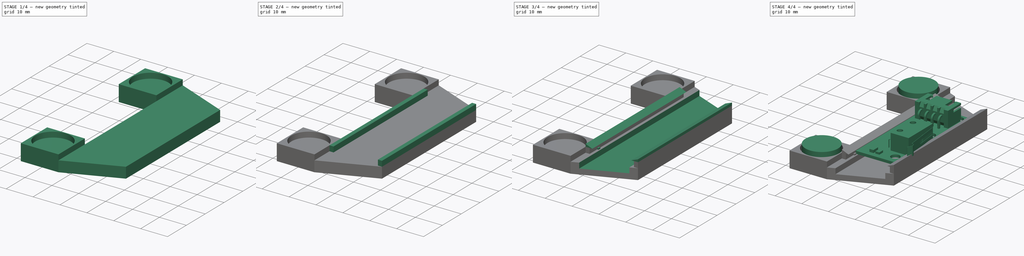
[diagram: build sequence overview — one tinted view per stage of 4, left to right]
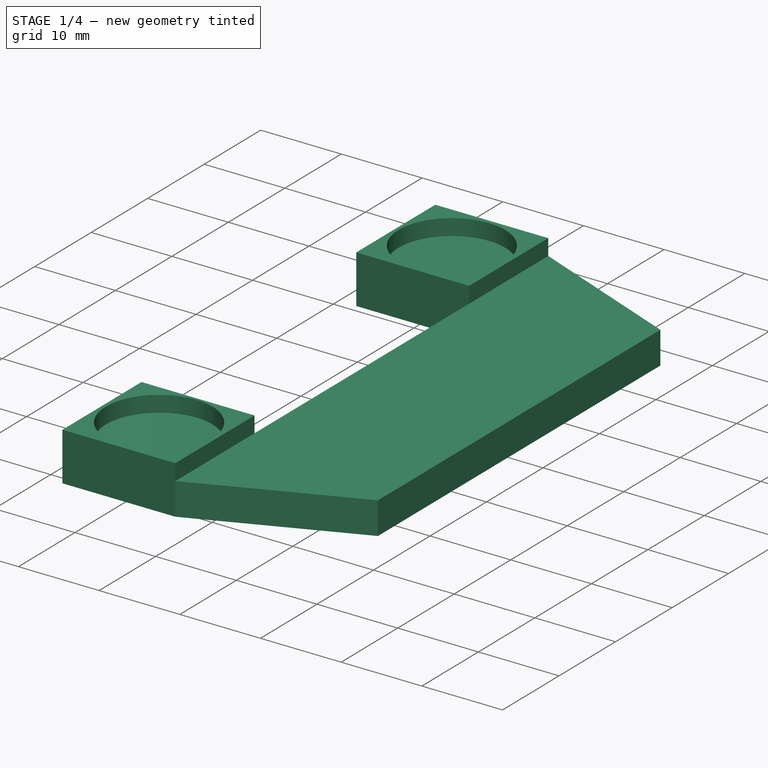
[diagram: stage 1 of 4 — iso view after this stage's code; geometry added in this stage tinted green]
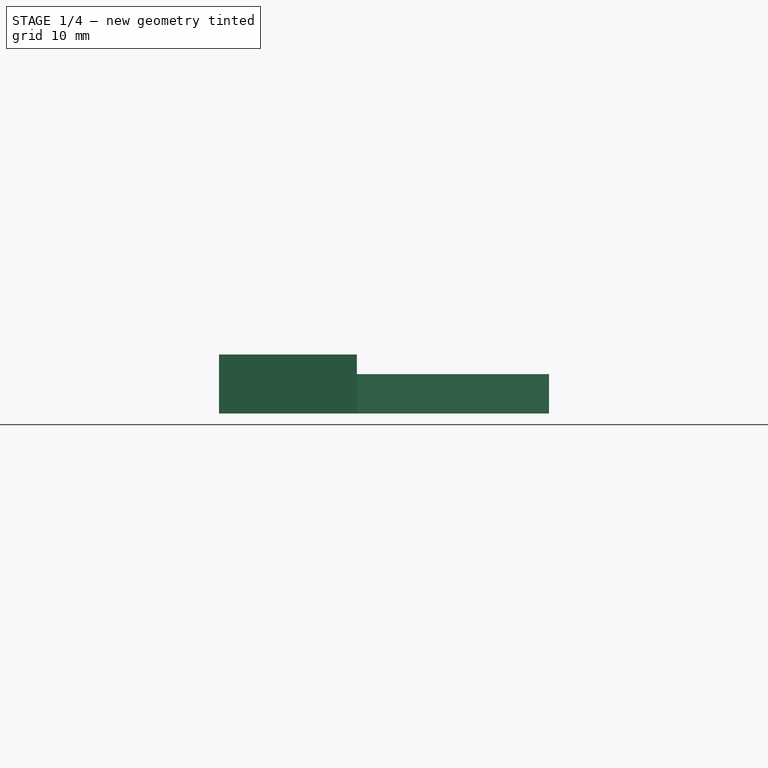
[diagram: stage 1 of 4 — front view after this stage's code; geometry added in this stage tinted green]
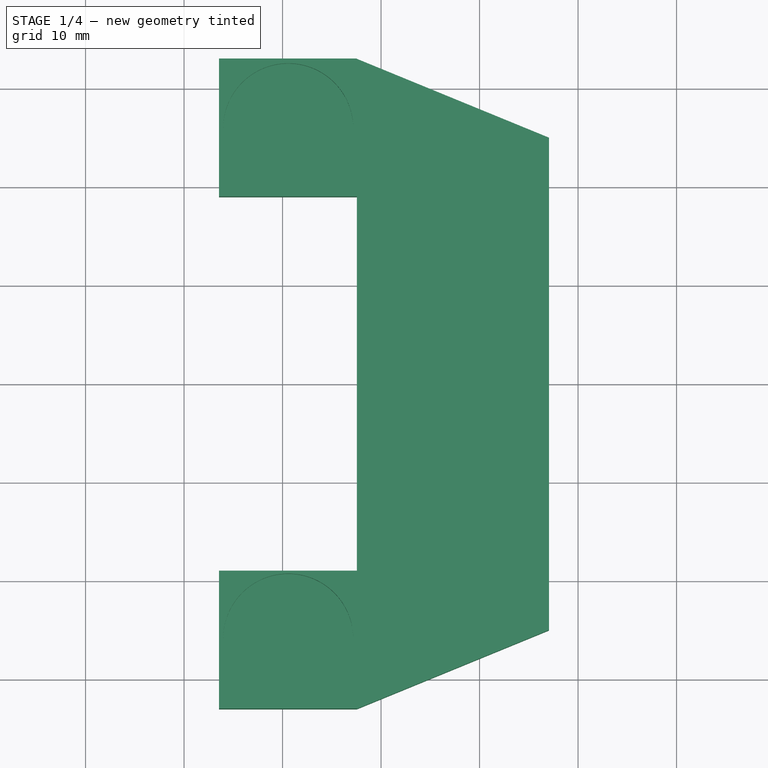
[diagram: stage 1 of 4 — top view after this stage's code; geometry added in this stage tinted green]
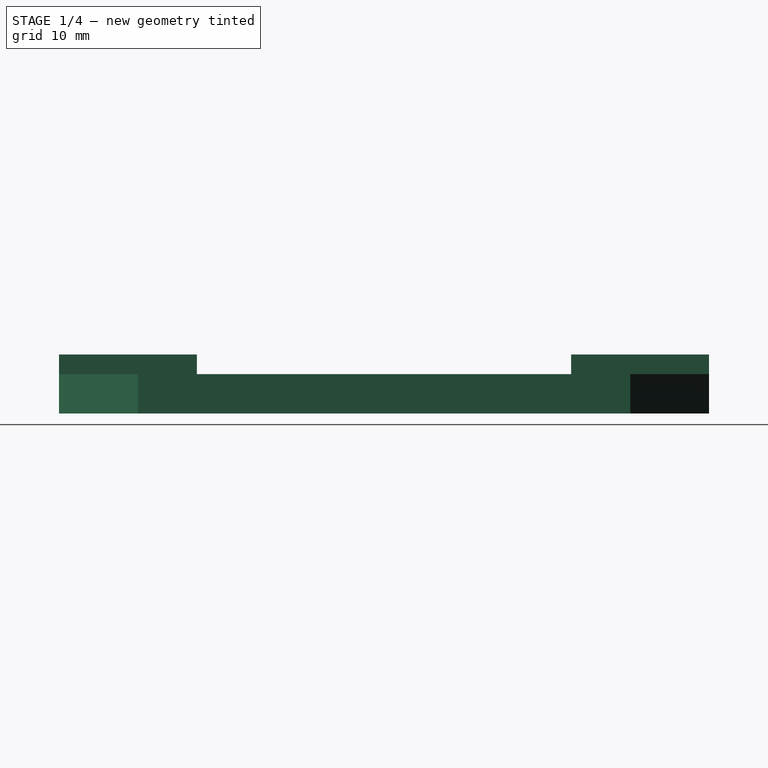
[diagram: stage 1 of 4 — right view after this stage's code; geometry added in this stage tinted green]
FCSTD DOCUMENT  (FreeCAD 0.16R6712 (Git))
Label: D3D_End_stop_interface_new
License: All rights reserved
LicenseURL: http://en.wikipedia.org/wiki/All_rights_reserved
objects: Part::Feature×15, Sketcher::SketchObject×8, Drawing::FeatureViewPython×8, PartDesign::Pad×6, PartDesign::LinearPattern×3, PartDesign::Pocket×2, App::MeasureDistance×2, Part::MultiFuse×1, App::FeaturePython×1, PartDesign::Mirrored×1, Drawing::FeatureViewPart×1, Drawing::FeaturePage×1
note: 44 computed .brp shape members not serialized (recipe doc carries the construction recipe); baked Part::Feature solids carry a one-line shape summary decoded from their .brp

FEATURE [Sketcher::SketchObject] Sketch010  label="main body end stop sketch"
  Placement = pos=(0,0,12) rot=(0,0,1;0rad)
  sketch-geometry (10):
    g0: LineSegment StartX=27.549 StartY=33 StartZ=0 EndX=47.049 EndY=25 EndZ=0
    g1: LineSegment StartX=47.049 StartY=25 StartZ=0 EndX=47.049 EndY=-25 EndZ=0
    g2: LineSegment StartX=47.049 StartY=-25 StartZ=0 EndX=27.549 EndY=-33 EndZ=0
    g3: LineSegment StartX=27.549 StartY=-33 StartZ=0 EndX=13.549 EndY=-33 EndZ=0
    g4: LineSegment StartX=13.549 StartY=-33 StartZ=0 EndX=13.549 EndY=-19 EndZ=0
    g5: LineSegment StartX=13.549 StartY=-19 StartZ=0 EndX=27.549 EndY=-19 EndZ=0
    g6: LineSegment StartX=27.549 StartY=-19 StartZ=0 EndX=27.549 EndY=19 EndZ=0
    g7: LineSegment StartX=27.549 StartY=19 StartZ=0 EndX=13.549 EndY=19 EndZ=0
    g8: LineSegment StartX=13.549 StartY=19 StartZ=0 EndX=13.549 EndY=33 EndZ=0
    g9: LineSegment StartX=13.549 StartY=33 StartZ=0 EndX=27.549 EndY=33 EndZ=0
  constraints (30):
    c: Coincident(g0,g1)
    c: Vertical(g1)
    c: Coincident(g1,g2)
    c: Coincident(g2,g3)
    c: Coincident(g3,g4)
    c: Vertical(g4)
    c: Coincident(g4,g5)
    c: Horizontal(g5)
    c: Coincident(g5,g6)
    c: Vertical(g6)
    c: Coincident(g6,g7)
    c: Horizontal(g7)
    c: Coincident(g7,g8)
    c: Vertical(g8)
    c: DistanceY(g1,g1) = 50
    c: DistanceX(g6,g0) = 19.5
    c: DistanceY(g8,g8) = 14
    c: Horizontal(g3)
    c: Symmetric(g0,g1,g-1)
    c: DistanceY(g3,g8) = 66
    c: Coincident(g9,g8)
    c: Coincident(g9,g0)
    c: Horizontal(g9)
    c: Symmetric(g0,g2,g-1)
    c: Equal(g9,g8)
    c: Equal(g8,g7)
    c: Equal(g7,g5)
    c: Equal(g5,g4)
    c: Equal(g4,g3)
    c: DistanceX(g-1,g4) = 13.549
FEATURE [PartDesign::Pad] Pad001  label="main body end stop"
  Length = 4
  Length2 = 100
  Placement = pos=(0,0,12) rot=(0,0,1;0rad)
  Sketch = -> Sketch010
  Type = 0
FEATURE [App::FeaturePython] planeConstraint01  # a2plus constraint (typed FeaturePython)
  Object1 = Pocket008
  Object2 = Fusion
  SubElement1 = Face5
  SubElement2 = Face29
  Type = plane
  directionConstraint = 1
  offset = 0
FEATURE [Sketcher::SketchObject] Sketch015  label="thicken around magnet holes sketch"
  ExternalGeometry = -> [Pad001]
  Placement = pos=(0,0,16) rot=(0,0,1;0rad)
  Support = -> Pad001 [Face12]
  sketch-geometry (8):
    g0: LineSegment StartX=27.549 StartY=33 StartZ=0 EndX=13.549 EndY=33 EndZ=0
    g1: LineSegment StartX=13.549 StartY=33 StartZ=0 EndX=13.549 EndY=19 EndZ=0
    g2: LineSegment StartX=13.549 StartY=19 StartZ=0 EndX=27.549 EndY=19 EndZ=0
    g3: LineSegment StartX=27.549 StartY=19 StartZ=0 EndX=27.549 EndY=33 EndZ=0
    g4: LineSegment StartX=13.549 StartY=-33 StartZ=0 EndX=27.549 EndY=-33 EndZ=0
    g5: LineSegment StartX=27.549 StartY=-33 StartZ=0 EndX=27.549 EndY=-19 EndZ=0
    g6: LineSegment StartX=27.549 StartY=-19 StartZ=0 EndX=13.549 EndY=-19 EndZ=0
    g7: LineSegment StartX=13.549 StartY=-19 StartZ=0 EndX=13.549 EndY=-33 EndZ=0
  constraints (20):
    c: Coincident(g0,g1)
    c: Coincident(g1,g2)
    c: Coincident(g2,g3)
    c: Coincident(g3,g0)
    c: Horizontal(g0)
    c: Horizontal(g2)
    c: Vertical(g1)
    c: Vertical(g3)
    c: Coincident(g0,g-3)
    c: Coincident(g1,g-4)
    c: Coincident(g4,g5)
    c: Coincident(g5,g6)
    c: Coincident(g6,g7)
    c: Coincident(g7,g4)
    c: Horizontal(g4)
    c: Horizontal(g6)
    c: Vertical(g5)
    c: Vertical(g7)
    c: Coincident(g5,g-6)
    c: Coincident(g4,g-5)
FEATURE [PartDesign::Pad] Pad  label="thicken around magnets"
  Length = 2
  Length2 = 100
  Placement = pos=(0,0,12) rot=(0,0,1;0rad)
  Sketch = -> Sketch015
  Type = 0
FEATURE [Sketcher::SketchObject] Sketch009  label="magnet holes of end stop sketch"
  Placement = pos=(0,0,18) rot=(0,0,1;0rad)
  Support = -> Pad [Face21]
  sketch-geometry (3):
    g0: Circle CenterX=20.574 CenterY=25.908 CenterZ=0 NormalX=0 NormalY=0 NormalZ=1 Radius=6.604
    g1: Circle CenterX=20.574 CenterY=-25.908 CenterZ=0 NormalX=0 NormalY=0 NormalZ=1 Radius=6.604
    g2: LineSegment [constr] StartX=20.574 StartY=25.908 StartZ=0 EndX=20.574 EndY=-25.908 EndZ=0
  constraints (8):
    c: Equal(g0,g1)
    c: Radius(g0) = 6.604
    c: DistanceX(g0) = 20.574
    c: DistanceY(g0) = 25.908
    c: Coincident(g2,g0)
    c: Coincident(g2,g1)
    c: Vertical(g2)
    c: Symmetric(g1,g0,g-1)
FEATURE [PartDesign::Pocket] Pocket  label="magnet holes of end stop"
  Length = 2
  Placement = pos=(0,0,12) rot=(0,0,1;0rad)
  Sketch = -> Sketch009
  Type = 0
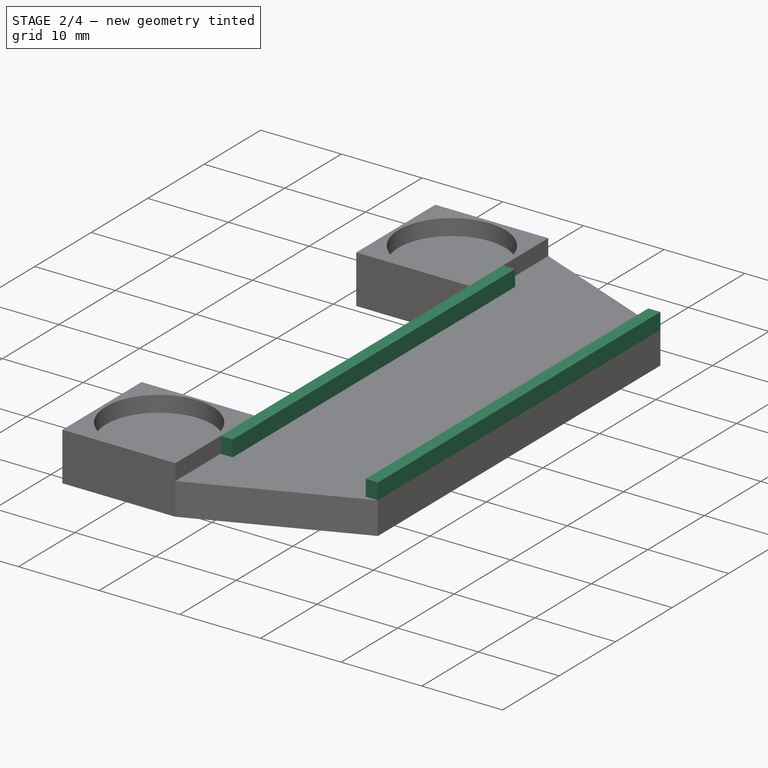
[diagram: stage 2 of 4 — iso view after this stage's code; geometry added in this stage tinted green]
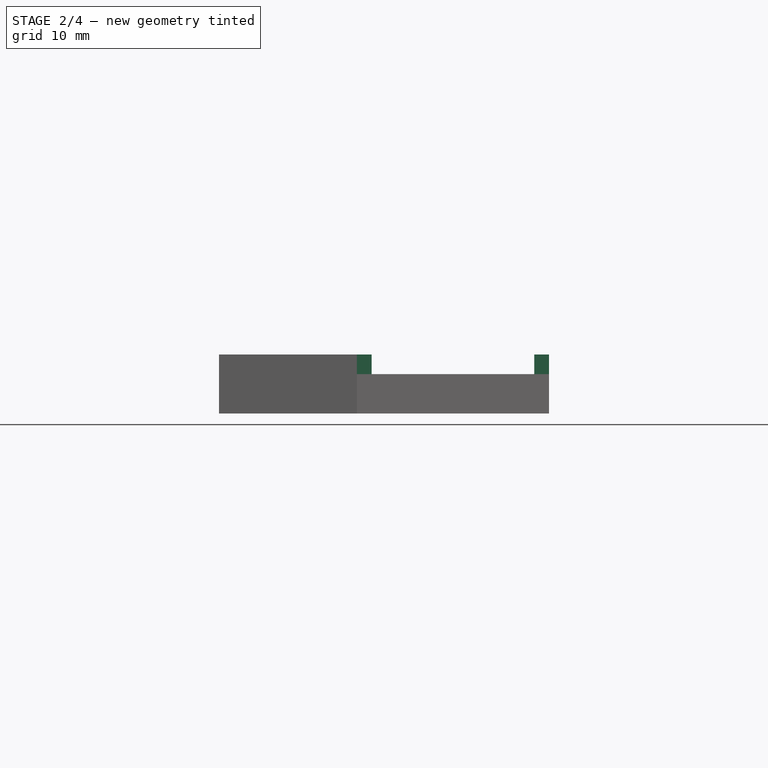
[diagram: stage 2 of 4 — front view after this stage's code; geometry added in this stage tinted green]
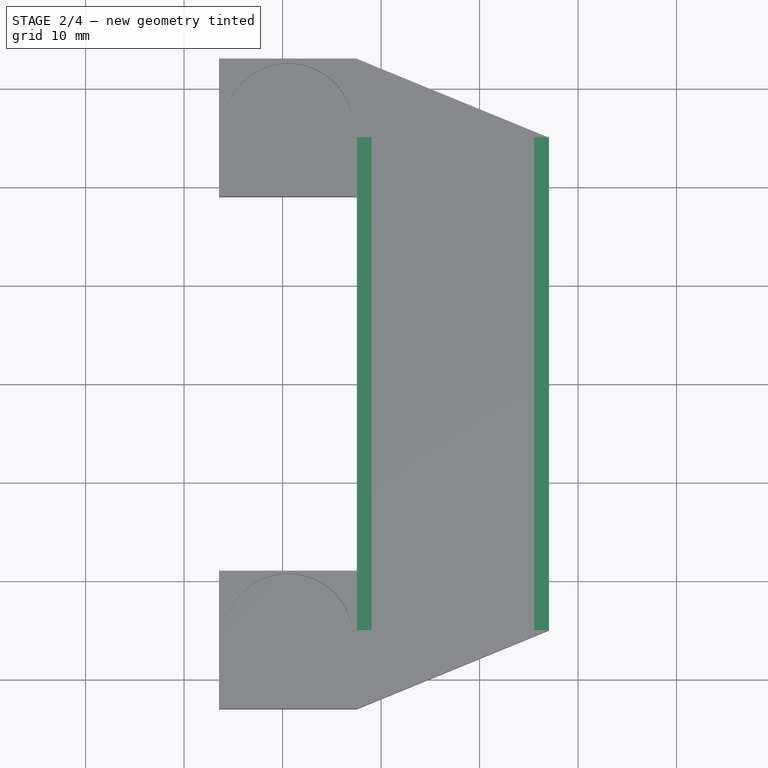
[diagram: stage 2 of 4 — top view after this stage's code; geometry added in this stage tinted green]
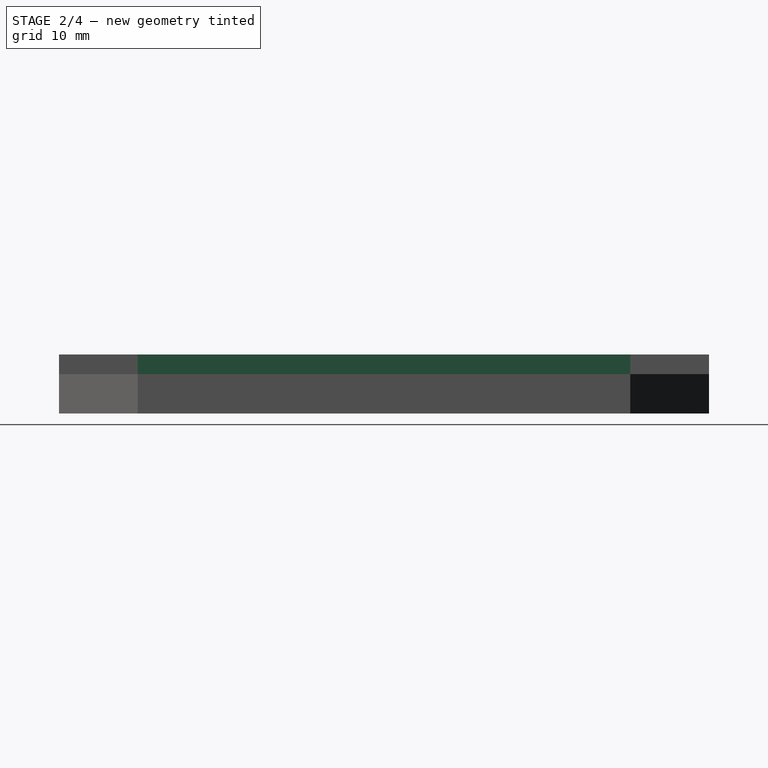
[diagram: stage 2 of 4 — right view after this stage's code; geometry added in this stage tinted green]
FEATURE [PartDesign::LinearPattern] LinearPattern  label="LinearPattern magnet holes"
  Direction = -> Pocket [Face1]
  Length = 4
  Occurrences = 2
  Originals = -> [Pocket]
  Placement = pos=(0,0,12) rot=(0,0,1;0rad)
  Reversed = true
FEATURE [Sketcher::SketchObject] Sketch011  label="tap body sketch"
  ExternalGeometry = -> [LinearPattern]
  Placement = pos=(0,0,16) rot=(0,0,1;0rad)
  Support = -> LinearPattern [Face14]
  sketch-geometry (4):
    g0: LineSegment StartX=27.549 StartY=25 StartZ=0 EndX=29.049 EndY=25 EndZ=0
    g1: LineSegment StartX=29.049 StartY=25 StartZ=0 EndX=29.049 EndY=-25 EndZ=0
    g2: LineSegment StartX=29.049 StartY=-25 StartZ=0 EndX=27.549 EndY=-25 EndZ=0
    g3: LineSegment StartX=27.549 StartY=25 StartZ=0 EndX=27.549 EndY=-25 EndZ=0
  constraints (12):
    c: Coincident(g0,g1)
    c: Coincident(g0,g3)
    c: Coincident(g1,g2)
    c: Coincident(g2,g3)
    c: Horizontal(g2)
    c: Vertical(g1)
    c: Vertical(g3)
    c: Horizontal(g0)
    c: PointOnObject(g0,g-3)
    c: Symmetric(g1,g0,g-1)
    c: DistanceY(g1,g1) = 50
    c: DistanceX(g2,g2) = 1.5
FEATURE [PartDesign::Pad] Pad002  label="tap body"
  Length = 2
  Length2 = 100
  Placement = pos=(0,0,12) rot=(0,0,1;0rad)
  Sketch = -> Sketch011
  Type = 0
FEATURE [PartDesign::LinearPattern] LinearPattern001  label="LinearPattern001 tap body"
  Direction = -> Sketch011 [H_Axis]
  Length = 18
  Occurrences = 2
  Originals = -> [Pad002]
  Placement = pos=(0,0,12) rot=(0,0,1;0rad)
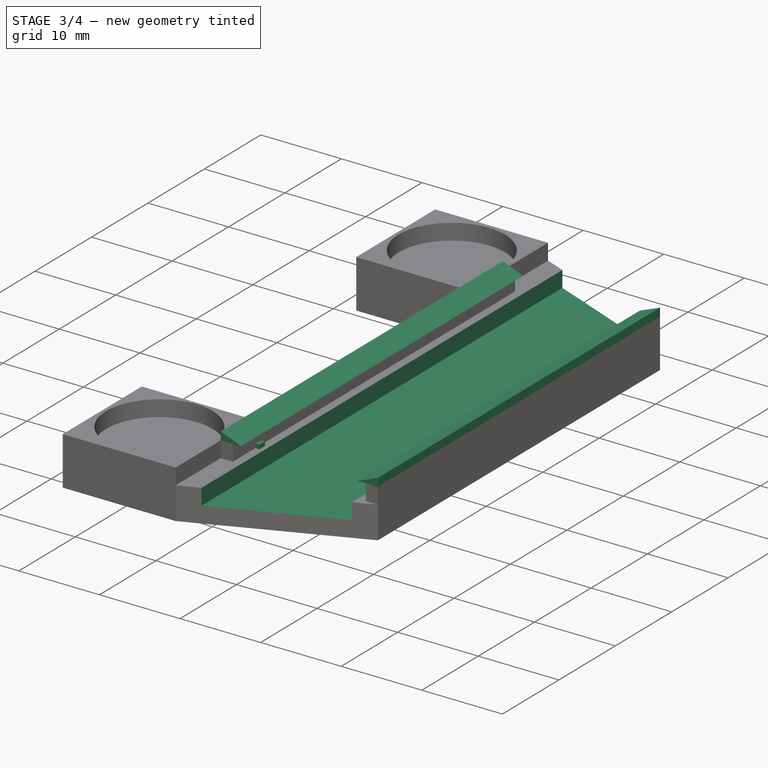
[diagram: stage 3 of 4 — iso view after this stage's code; geometry added in this stage tinted green]
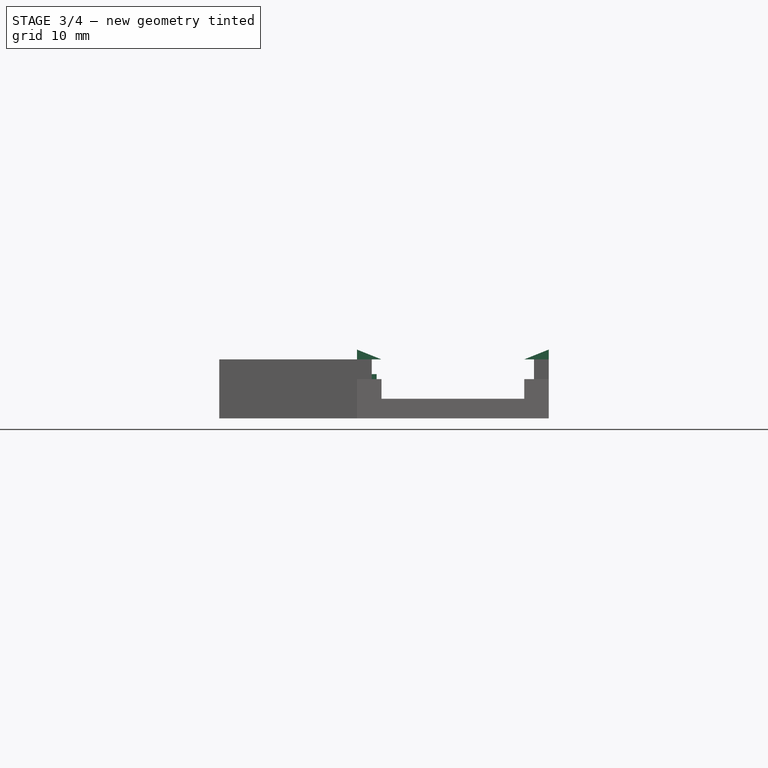
[diagram: stage 3 of 4 — front view after this stage's code; geometry added in this stage tinted green]
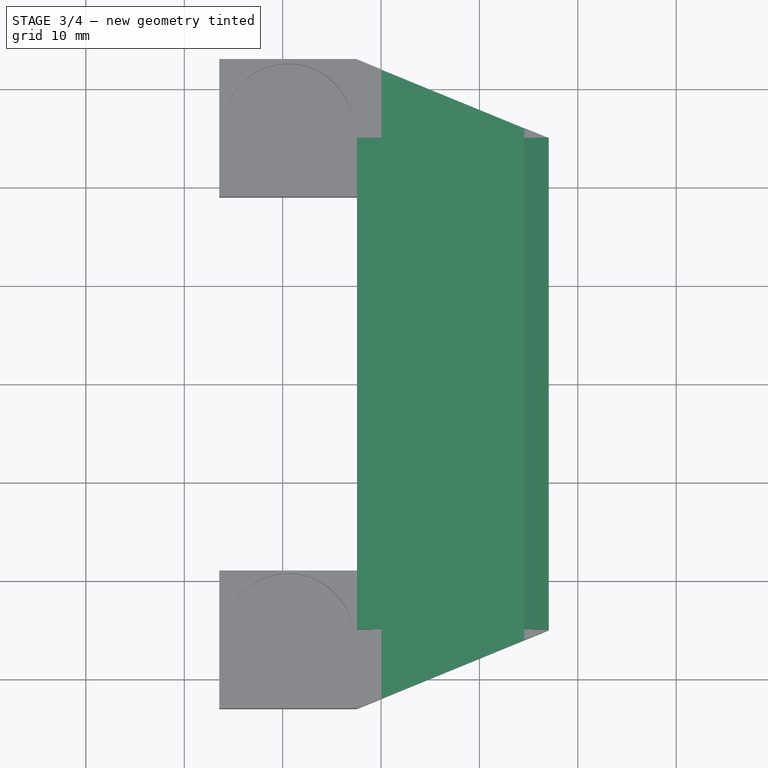
[diagram: stage 3 of 4 — top view after this stage's code; geometry added in this stage tinted green]
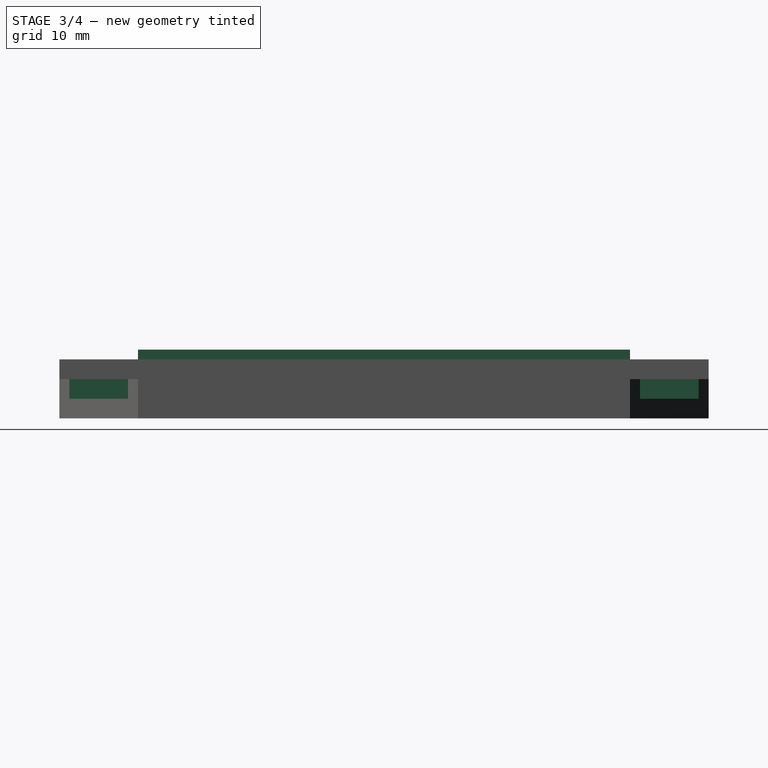
[diagram: stage 3 of 4 — right view after this stage's code; geometry added in this stage tinted green]
FEATURE [Sketcher::SketchObject] Sketch017  label="harpoon sketch"
  ExternalGeometry = -> [LinearPattern001]
  Placement = pos=(0,-25,12) rot=(1,0,0;1.5708rad)
  Support = -> LinearPattern001 [Face29]
  sketch-geometry (4):
    g0: LineSegment StartX=27.549 StartY=6 StartZ=0 EndX=30.049 EndY=6 EndZ=0
    g1: LineSegment StartX=30.049 StartY=6 StartZ=0 EndX=27.549 EndY=7 EndZ=0
    g2: LineSegment StartX=27.549 StartY=7 StartZ=0 EndX=27.549 EndY=6 EndZ=0
    g3: LineSegment [constr] StartX=37.299 StartY=9.19341 StartZ=0 EndX=37.299 EndY=4.93829 EndZ=0
  constraints (10):
    c: Horizontal(g0)
    c: Coincident(g0,g1)
    c: Coincident(g1,g2)
    c: Coincident(g2,g0)
    c: Vertical(g2)
    c: Vertical(g3)
    c: DistanceX(g0,g3) = 9.75
    c: Coincident(g-3,g0)
    c: DistanceX(g-3,g0) = 1
    c: DistanceY(g0,g1) = 1
FEATURE [PartDesign::Pad] Pad003  label="harpoon"
  Length = 10
  Length2 = 100
  Placement = pos=(0,0,12) rot=(0,0,1;0rad)
  Sketch = -> Sketch017
  Type = 3
  UpToFace = -> LinearPattern001 [Face31]
FEATURE [PartDesign::Mirrored] Mirrored  label="Mirrored harpoon"
  MirrorPlane = -> Sketch017 [Axis0]
  Originals = -> [Pad003]
  Placement = pos=(0,0,12) rot=(0,0,1;0rad)
FEATURE [Sketcher::SketchObject] Sketch  label="pool cut sketch"
  ExternalGeometry = -> [Mirrored]
  Placement = pos=(0,0,16) rot=(0,0,1;0rad)
  Support = -> Mirrored [Face14]
  sketch-geometry (4):
    g0: LineSegment StartX=30.049 StartY=40 StartZ=0 EndX=44.549 EndY=40 EndZ=0
    g1: LineSegment StartX=44.549 StartY=40 StartZ=0 EndX=44.549 EndY=-40 EndZ=0
    g2: LineSegment StartX=44.549 StartY=-40 StartZ=0 EndX=30.049 EndY=-40 EndZ=0
    g3: LineSegment StartX=30.049 StartY=-40 StartZ=0 EndX=30.049 EndY=40 EndZ=0
  constraints (12):
    c: Vertical(g1)
    c: Vertical(g3)
    c: Horizontal(g2)
    c: Horizontal(g0)
    c: Coincident(g1,g2)
    c: Coincident(g2,g3)
    c: Coincident(g1,g0)
    c: Coincident(g3,g0)
    c: DistanceX(g-5,g2) = 2.5
    c: DistanceX(g2,g2) = 14.5
    c: Symmetric(g0,g1,g-1)
    c: DistanceY(g1,g1) = 80
FEATURE [Drawing::FeatureViewPart] Ortho  label="Ortho_0_0"
  Direction = (0,-1,0)
  HiddenWidth = 0.15
  LineWidth = 0.35
  Rotation = 90
  Scale = 10
  ShowHiddenLines = false
  ShowSmoothLines = false
  Tolerance = 0.05
  ViewResult = <g id="Ortho_0_0"\n   transform="rotate(90,-87.99,273.5) translate(-87.99,273.5) scale(10,10)"\n  >\n<g   stroke="rgb(0, 0, 0)"\n   stroke-width="0.035"\n   stroke-linecap="butt"\n   stroke-linejoin="miter"\n   fill="none"\n   transform="scale(1,-1)"\n  >\n<path id= "1" d=" M -12 47.049 L -12 27.549 " />\n<path id= "2" d=" M -12 27.549 L -12 13.549 " />\n<path id= "3" d=" M -12 47.049 L -16 47.049 " />\n<path id= "4" d=" M -12 13.549 L -16 13.549 " />\n<path id= "5" d=" M -12 27.549 L -16 27.549 " />\n<path id= "6" d=" M -16 29.549 L -16 27.549 " />\n<path id= "7" d=" M -14 29.549 L -16 29.549 " />\n<path id= "8" d=" M -14 44.049 L -14 29.549 " />\n<path id= "9" d=" M -16 44.049 L -14 44.049 " />\n<path id= "10" d=" M -16 47.049 L -16 44.049 " />\n<path id= "11" d=" M -16 13.549 L -16 27.549 " />\n<path id= "12" d=" M -12 13.549 L -16 13.549 " />\n<path id= "13" d=" M -16 47.049 L -18 47.049 " />\n<path id= "14" d=" M -16 27.549 L -18 27.549 " />\n<path id= "15" d=" M -16 13.549 L -18 13.549 " />\n<path id= "16" d=" M -18 13.549 L -18 27.549 " />\n<path id= "17" d=" M -16 27.549 L -18 27.549 " />\n<path id= "18" d=" M -18 45.549 L -16 45.549 " />\n<path id= "19" d=" M -16 27.549 L -18 27.549 " />\n<path id= "20" d=" M -16 29.049 L -18 29.049 " />\n<path id= "21" d=" M -18 27.549 L -18 29.049 " />\n<path id= "22" d=" M -18 44.549 L -18 45.549 " />\n<path id= "23" d=" M -18 47.049 L -18 45.549 " />\n<path id= "24" d=" M -16 45.549 L -18 45.549 " />\n<path id= "25" d=" M -19 47.049 L -18 47.049 " />\n<path id= "26" d=" M -19 27.549 L -18 27.549 " />\n<path id= "27" d=" M -18 29.049 L -18 30.049 " />\n<path id= "28" d=" M -18 30.049 L -19 27.549 " />\n<path id= "29" d=" M -18 44.549 L -19 47.049 " />\n<path id= "30" d=" M -18 45.549 L -18 44.549 " />\n</g>\n</g>
  Visible = true
  X = -87.99
  Y = 273.5
FEATURE [Drawing::FeatureViewPython] dim001  # drawing view (typed FeaturePython)
  Rotation = 0
  ViewResult = <g> \n  <line x1="187.500000" y1="115.500000" x2="187.500000" y2="173.991227" style="stroke:rgb(0,0,255);stroke-width:0.30" />\n<line x1="197.500000" y1="115.500000" x2="197.500000" y2="173.991227" style="stroke:rgb(0,0,255);stroke-width:0.30" />\n<line x1="187.500000" y1="172.991227" x2="197.500000" y2="172.991227" style="stroke:rgb(0,0,255);stroke-width:0.30" /> \n  <polygon points="197.500000,172.991227 200.500000,173.991227 201.500000,172.991227 200.500000,171.991227" style="fill:rgb(0,0,255);stroke:rgb(0,0,255);stroke-width:0" /><polygon points="187.500000,172.991227 184.500000,171.991227 183.500000,172.991227 184.500000,173.991227" style="fill:rgb(0,0,255);stroke:rgb(0,0,255);stroke-width:0" /> \n  <text x="192.500000" y="170.991227" font-family="Verdana" font-size="3.6" fill="rgb(255,0,0)" text-anchor="middle" transform="rotate(0.000000 192.500000,170.991227)" >1</text> </g>
  Visible = true
  X = 0
  Y = 0
  arrowL1 = 3
  arrowL2 = 1
  arrowW = 2
  arrow_scheme = 0
  autoPlaceOffset = 2
  autoPlaceText = true
  click1_x = 200.074
  click1_y = 172.991
  click2_x = 200.074
  click2_y = 172.991
  comma_decimal_place = false
  dimension_line_overshoot = 1
  gap_datum_points = 2
  halfDimension_linear = false
  lineColor = rgb(0,0,255)
  strokeWidth = 0.3
  textFormat_linear = %(value)3.3f
  textRenderer_color = rgb(255,0,0)
  textRenderer_family = Verdana
  textRenderer_size = 3.6
  unit_custom_scale = 1
  unit_scheme = 0
FEATURE [Drawing::FeatureViewPython] dim002  # drawing view (typed FeaturePython)
  Rotation = 0
  ViewResult = <g> \n  <line x1="197.500000" y1="115.500000" x2="197.500000" y2="173.991227" style="stroke:rgb(0,0,255);stroke-width:0.30" />\n<line x1="207.500000" y1="115.500000" x2="207.500000" y2="173.991227" style="stroke:rgb(0,0,255);stroke-width:0.30" />\n<line x1="197.500000" y1="172.991227" x2="207.500000" y2="172.991227" style="stroke:rgb(0,0,255);stroke-width:0.30" /> \n  <polygon points="207.500000,172.991227 210.500000,173.991227 211.500000,172.991227 210.500000,171.991227" style="fill:rgb(0,0,255);stroke:rgb(0,0,255);stroke-width:0" /><polygon points="197.500000,172.991227 194.500000,171.991227 193.500000,172.991227 194.500000,173.991227" style="fill:rgb(0,0,255);stroke:rgb(0,0,255);stroke-width:0" /> \n  <text x="202.500000" y="170.991227" font-family="Verdana" font-size="3.6" fill="rgb(255,0,0)" text-anchor="middle" transform="rotate(0.000000 202.500000,170.991227)" >1</text> </g>
  Visible = true
  X = 0
  Y = 0
  arrowL1 = 3
  arrowL2 = 1
  arrowW = 2
  arrow_scheme = 0
  autoPlaceOffset = 2
  autoPlaceText = true
  click1_x = 208.876
  click1_y = 172.991
  click2_x = 208.876
  click2_y = 172.991
  comma_decimal_place = false
  dimension_line_overshoot = 1
  gap_datum_points = 2
  halfDimension_linear = false
  lineColor = rgb(0,0,255)
  strokeWidth = 0.3
  textFormat_linear = %(value)3.3f
  textRenderer_color = rgb(255,0,0)
  textRenderer_family = Verdana
  textRenderer_size = 3.6
  unit_custom_scale = 1
  unit_scheme = 0
FEATURE [Drawing::FeatureViewPython] dim003  # drawing view (typed FeaturePython)
  Rotation = 0
  ViewResult = <g> \n  <line x1="187.500000" y1="91.500000" x2="187.500000" y2="53.504085" style="stroke:rgb(0,0,255);stroke-width:0.30" />\n<line x1="207.500000" y1="91.500000" x2="207.500000" y2="53.504085" style="stroke:rgb(0,0,255);stroke-width:0.30" />\n<line x1="187.500000" y1="54.504085" x2="207.500000" y2="54.504085" style="stroke:rgb(0,0,255);stroke-width:0.30" /> \n  <polygon points="207.500000,54.504085 204.500000,53.504085 203.500000,54.504085 204.500000,55.504085" style="fill:rgb(0,0,255);stroke:rgb(0,0,255);stroke-width:0" /><polygon points="187.500000,54.504085 190.500000,55.504085 191.500000,54.504085 190.500000,53.504085" style="fill:rgb(0,0,255);stroke:rgb(0,0,255);stroke-width:0" /> \n  <text x="197.500000" y="52.504085" font-family="Verdana" font-size="3.6" fill="rgb(255,0,0)" text-anchor="middle" transform="rotate(0.000000 197.500000,52.504085)" >2</text> </g>
  Visible = true
  X = 0
  Y = 0
  arrowL1 = 3
  arrowL2 = 1
  arrowW = 2
  arrow_scheme = 0
  autoPlaceOffset = 2
  autoPlaceText = true
  click1_x = 204.136
  click1_y = 54.5041
  click2_x = 204.136
  click2_y = 54.5041
  comma_decimal_place = false
  dimension_line_overshoot = 1
  gap_datum_points = 2
  halfDimension_linear = false
  lineColor = rgb(0,0,255)
  strokeWidth = 0.3
  textFormat_linear = %(value)3.3f
  textRenderer_color = rgb(255,0,0)
  textRenderer_family = Verdana
  textRenderer_size = 3.6
  unit_custom_scale = 1
  unit_scheme = 0
FEATURE [Drawing::FeatureViewPython] dim004  # drawing view (typed FeaturePython)
  Rotation = 0
  ViewResult = <g> \n  <line x1="199.500000" y1="113.500000" x2="217.323667" y2="113.500000" style="stroke:rgb(0,0,255);stroke-width:0.30" />\n<line x1="199.500000" y1="93.500000" x2="217.323667" y2="93.500000" style="stroke:rgb(0,0,255);stroke-width:0.30" />\n<line x1="216.323667" y1="113.500000" x2="216.323667" y2="93.500000" style="stroke:rgb(0,0,255);stroke-width:0.30" /> \n  <polygon points="216.323667,93.500000 215.323667,96.500000 216.323667,97.500000 217.323667,96.500000" style="fill:rgb(0,0,255);stroke:rgb(0,0,255);stroke-width:0" /><polygon points="216.323667,113.500000 217.323667,110.500000 216.323667,109.500000 215.323667,110.500000" style="fill:rgb(0,0,255);stroke:rgb(0,0,255);stroke-width:0" /> \n  <text x="214.323667" y="103.500000" font-family="Verdana" font-size="3.6" fill="rgb(255,0,0)" text-anchor="middle" transform="rotate(-90.000000 214.323667,103.500000)" >2</text> </g>
  Visible = true
  X = 0
  Y = 0
  arrowL1 = 3
  arrowL2 = 1
  arrowW = 2
  arrow_scheme = 0
  autoPlaceOffset = 2
  autoPlaceText = true
  click1_x = 216.324
  click1_y = 104.946
  click2_x = 216.324
  click2_y = 104.946
  comma_decimal_place = false
  dimension_line_overshoot = 1
  gap_datum_points = 2
  halfDimension_linear = false
  lineColor = rgb(0,0,255)
  strokeWidth = 0.3
  textFormat_linear = %(value)3.3f
  textRenderer_color = rgb(255,0,0)
  textRenderer_family = Verdana
  textRenderer_size = 3.6
  unit_custom_scale = 1
  unit_scheme = 0
FEATURE [Drawing::FeatureViewPython] dim005  # drawing view (typed FeaturePython)
  Rotation = 0
  ViewResult = <g> \n  <line x1="209.500000" y1="133.500000" x2="216.985133" y2="133.500000" style="stroke:rgb(0,0,255);stroke-width:0.30" />\n<line x1="209.500000" y1="113.500000" x2="216.985133" y2="113.500000" style="stroke:rgb(0,0,255);stroke-width:0.30" />\n<line x1="215.985133" y1="133.500000" x2="215.985133" y2="113.500000" style="stroke:rgb(0,0,255);stroke-width:0.30" /> \n  <polygon points="215.985133,113.500000 214.985133,116.500000 215.985133,117.500000 216.985133,116.500000" style="fill:rgb(0,0,255);stroke:rgb(0,0,255);stroke-width:0" /><polygon points="215.985133,133.500000 216.985133,130.500000 215.985133,129.500000 214.985133,130.500000" style="fill:rgb(0,0,255);stroke:rgb(0,0,255);stroke-width:0" /> \n  <text x="213.985133" y="123.500000" font-family="Verdana" font-size="3.6" fill="rgb(255,0,0)" text-anchor="middle" transform="rotate(-90.000000 213.985133,123.500000)" >2</text> </g>
  Visible = true
  X = 0
  Y = 0
  arrowL1 = 3
  arrowL2 = 1
  arrowW = 2
  arrow_scheme = 0
  autoPlaceOffset = 2
  autoPlaceText = true
  click1_x = 215.985
  click1_y = 124.242
  click2_x = 215.985
  click2_y = 124.242
  comma_decimal_place = false
  dimension_line_overshoot = 1
  gap_datum_points = 2
  halfDimension_linear = false
  lineColor = rgb(0,0,255)
  strokeWidth = 0.3
  textFormat_linear = %(value)3.3f
  textRenderer_color = rgb(255,0,0)
  textRenderer_family = Verdana
  textRenderer_size = 3.6
  unit_custom_scale = 1
  unit_scheme = 0
FEATURE [Drawing::FeatureViewPython] dim006  # drawing view (typed FeaturePython)
  Rotation = 0
  ViewResult = <g> \n  <line x1="352.500000" y1="135.500000" x2="352.500000" y2="173.991227" style="stroke:rgb(0,0,255);stroke-width:0.30" />\n<line x1="207.500000" y1="135.500000" x2="207.500000" y2="173.991227" style="stroke:rgb(0,0,255);stroke-width:0.30" />\n<line x1="352.500000" y1="172.991227" x2="207.500000" y2="172.991227" style="stroke:rgb(0,0,255);stroke-width:0.30" /> \n  <polygon points="207.500000,172.991227 210.500000,173.991227 211.500000,172.991227 210.500000,171.991227" style="fill:rgb(0,0,255);stroke:rgb(0,0,255);stroke-width:0" /><polygon points="352.500000,172.991227 349.500000,171.991227 348.500000,172.991227 349.500000,173.991227" style="fill:rgb(0,0,255);stroke:rgb(0,0,255);stroke-width:0" /> \n  <text x="280.000000" y="170.991227" font-family="Verdana" font-size="3.6" fill="rgb(255,0,0)" text-anchor="middle" transform="rotate(0.000000 280.000000,170.991227)" >14.5</text> </g>
  Visible = true
  X = 0
  Y = 0
  arrowL1 = 3
  arrowL2 = 1
  arrowW = 2
  arrow_scheme = 0
  autoPlaceOffset = 2
  autoPlaceText = true
  click1_x = 252.208
  click1_y = 172.991
  click2_x = 252.208
  click2_y = 172.991
  comma_decimal_place = false
  dimension_line_overshoot = 1
  gap_datum_points = 2
  halfDimension_linear = false
  lineColor = rgb(0,0,255)
  strokeWidth = 0.3
  textFormat_linear = %(value)3.3f
  textRenderer_color = rgb(255,0,0)
  textRenderer_family = Verdana
  textRenderer_size = 3.6
  unit_custom_scale = 1
  unit_scheme = 0
FEATURE [Drawing::FeatureViewPython] dim007  # drawing view (typed FeaturePython)
  Rotation = 0
  ViewResult = <g> \n  <line x1="372.500000" y1="155.500000" x2="372.500000" y2="193.964774" style="stroke:rgb(0,0,255);stroke-width:0.30" />\n<line x1="187.500000" y1="155.500000" x2="187.500000" y2="193.964774" style="stroke:rgb(0,0,255);stroke-width:0.30" />\n<line x1="372.500000" y1="192.964774" x2="187.500000" y2="192.964774" style="stroke:rgb(0,0,255);stroke-width:0.30" /> \n  <polygon points="187.500000,192.964774 190.500000,193.964774 191.500000,192.964774 190.500000,191.964774" style="fill:rgb(0,0,255);stroke:rgb(0,0,255);stroke-width:0" /><polygon points="372.500000,192.964774 369.500000,191.964774 368.500000,192.964774 369.500000,193.964774" style="fill:rgb(0,0,255);stroke:rgb(0,0,255);stroke-width:0" /> \n  <text x="280.000000" y="190.964774" font-family="Verdana" font-size="3.6" fill="rgb(255,0,0)" text-anchor="middle" transform="rotate(0.000000 280.000000,190.964774)" >18.5</text> </g>
  Visible = true
  X = 0
  Y = 0
  arrowL1 = 3
  arrowL2 = 1
  arrowW = 2
  arrow_scheme = 0
  autoPlaceOffset = 2
  autoPlaceText = true
  click1_x = 251.531
  click1_y = 192.965
  click2_x = 251.531
  click2_y = 192.965
  comma_decimal_place = false
  dimension_line_overshoot = 1
  gap_datum_points = 2
  halfDimension_linear = false
  lineColor = rgb(0,0,255)
  strokeWidth = 0.3
  textFormat_linear = %(value)3.3f
  textRenderer_color = rgb(255,0,0)
  textRenderer_family = Verdana
  textRenderer_size = 3.6
  unit_custom_scale = 1
  unit_scheme = 0
FEATURE [Drawing::FeatureViewPython] dim008  # drawing view (typed FeaturePython)
  Rotation = 0
  ViewResult = <g> \n  <line x1="197.500000" y1="115.500000" x2="197.500000" y2="185.162872" style="stroke:rgb(0,0,255);stroke-width:0.30" />\n<line x1="362.500000" y1="115.500000" x2="362.500000" y2="185.162872" style="stroke:rgb(0,0,255);stroke-width:0.30" />\n<line x1="197.500000" y1="184.162872" x2="362.500000" y2="184.162872" style="stroke:rgb(0,0,255);stroke-width:0.30" /> \n  <polygon points="362.500000,184.162872 359.500000,183.162872 358.500000,184.162872 359.500000,185.162872" style="fill:rgb(0,0,255);stroke:rgb(0,0,255);stroke-width:0" /><polygon points="197.500000,184.162872 200.500000,185.162872 201.500000,184.162872 200.500000,183.162872" style="fill:rgb(0,0,255);stroke:rgb(0,0,255);stroke-width:0" /> \n  <text x="280.000000" y="182.162872" font-family="Verdana" font-size="3.6" fill="rgb(255,0,0)" text-anchor="middle" transform="rotate(0.000000 280.000000,182.162872)" >16.5</text> </g>
  Visible = true
  X = 0
  Y = 0
  arrowL1 = 3
  arrowL2 = 1
  arrowW = 2
  arrow_scheme = 0
  autoPlaceOffset = 2
  autoPlaceText = true
  click1_x = 354.446
  click1_y = 184.163
  click2_x = 354.446
  click2_y = 184.163
  comma_decimal_place = false
  dimension_line_overshoot = 1
  gap_datum_points = 2
  halfDimension_linear = false
  lineColor = rgb(0,0,255)
  strokeWidth = 0.3
  textFormat_linear = %(value)3.3f
  textRenderer_color = rgb(255,0,0)
  textRenderer_family = Verdana
  textRenderer_size = 3.6
  unit_custom_scale = 1
  unit_scheme = 0
FEATURE [Drawing::FeaturePage] Page
  EditableTexts = AUTHOR NAME | CREATION DATE | SUPERVISOR NAME | CHECK DATE | SCALE | WEIGHT | NUMBER | SHEET | TITLE | SUBTITLE
  Group = -> [Ortho,dim001,dim002,dim003,dim004,dim005,dim006,dim007,dim008]
FEATURE [PartDesign::Pocket] Pocket001  label="pool cut sketch001"
  Length = 2
  Placement = pos=(0,0,12) rot=(0,0,1;0rad)
  Sketch = -> Sketch
  Type = 0
FEATURE [Sketcher::SketchObject] Sketch018  label="Bump sketch"
  ExternalGeometry = -> [Pocket001]
  Placement = pos=(29.049,0,12) rot=(0.57735,0.57735,0.57735;2.0944rad)
  Support = -> Pocket001 [Face34]
  sketch-geometry (4):
    g0: LineSegment StartX=-21 StartY=4 StartZ=0 EndX=-20 EndY=4 EndZ=0
    g1: LineSegment StartX=-20 StartY=4 StartZ=0 EndX=-20 EndY=4.5 EndZ=0
    g2: LineSegment StartX=-20 StartY=4.5 StartZ=0 EndX=-21 EndY=4.5 EndZ=0
    g3: LineSegment StartX=-21 StartY=4.5 StartZ=0 EndX=-21 EndY=4 EndZ=0
  constraints (12):
    c: Coincident(g0,g1)
    c: Coincident(g1,g2)
    c: Coincident(g2,g3)
    c: Coincident(g3,g0)
    c: Horizontal(g0)
    c: Horizontal(g2)
    c: Vertical(g1)
    c: Vertical(g3)
    c: PointOnObject(g0,g-3)
    c: DistanceY(g3,g3) = 0.5
    c: DistanceX(g0,g0) = 1
    c: DistanceX(g0,g-1) = 20
FEATURE [PartDesign::Pad] Pad004  label="Bump"
  Length = 0.5
  Length2 = 100
  Placement = pos=(0,0,12) rot=(0,0,1;0rad)
  Sketch = -> Sketch018
  Type = 0
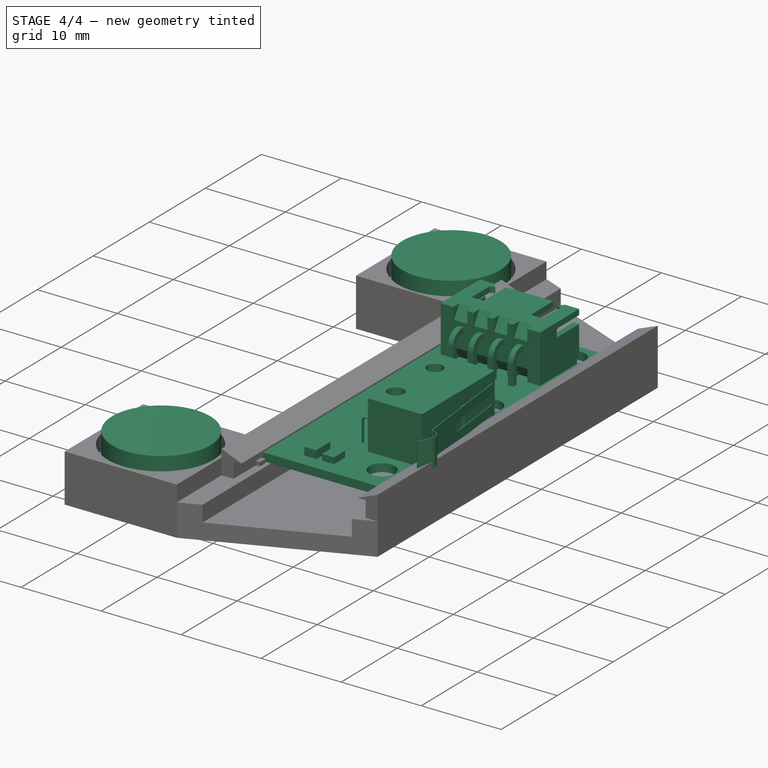
[diagram: stage 4 of 4 — iso view after this stage's code; geometry added in this stage tinted green]
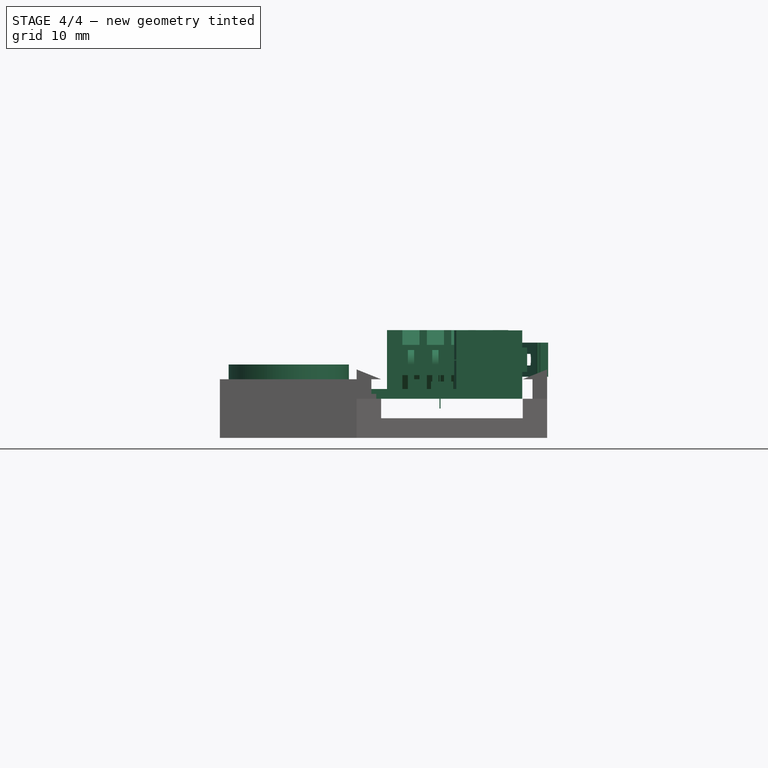
[diagram: stage 4 of 4 — front view after this stage's code; geometry added in this stage tinted green]
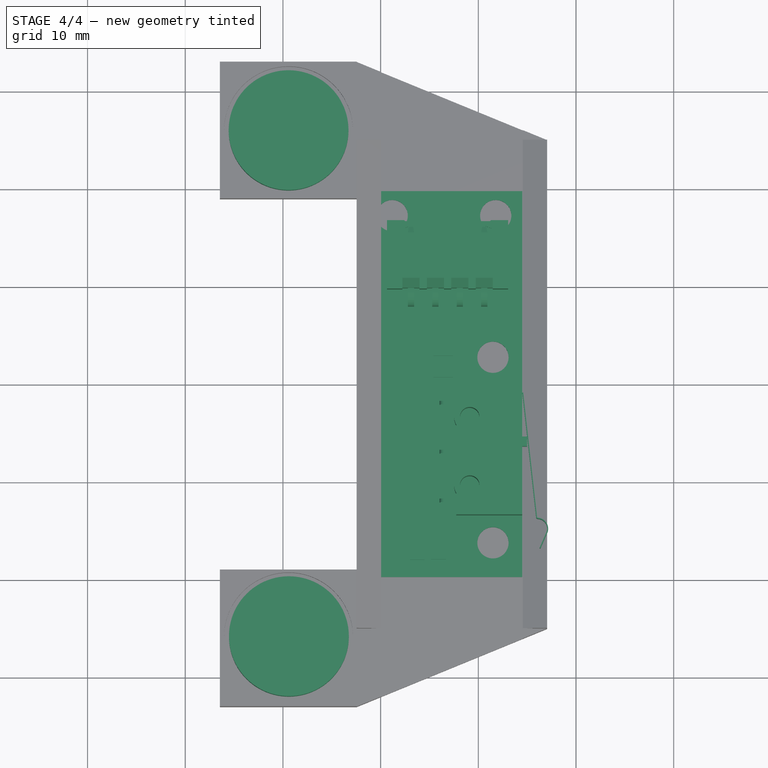
[diagram: stage 4 of 4 — top view after this stage's code; geometry added in this stage tinted green]
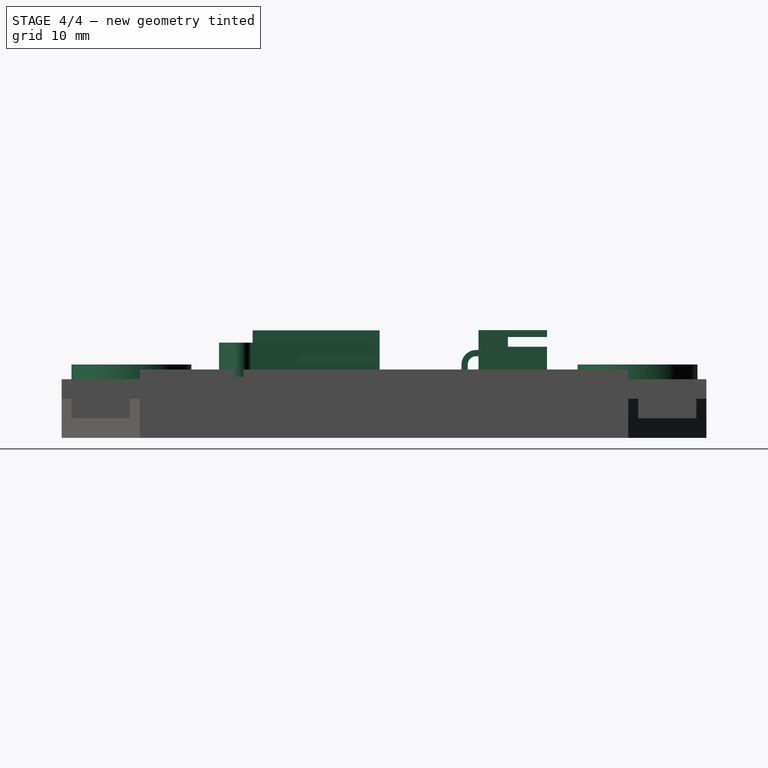
[diagram: stage 4 of 4 — right view after this stage's code; geometry added in this stage tinted green]
FEATURE [Part::Feature] Part__Feature  label="PCB Geometry"
  shape: bbox 2.5 x 1.5 x 1 mm, 6 faces (baked)
FEATURE [Part::Feature] Part__Feature001  label="PCB Geometry001"
  shape: bbox 1.5 x 2 x 0.76 mm, 6 faces (baked)
FEATURE [Part::Feature] Part__Feature002  label="PCB Geometry002"
  shape: bbox 1.5 x 2 x 0.76 mm, 6 faces (baked)
FEATURE [Part::Feature] Part__Feature003  label="PCB Geometry003"
  shape: bbox 2 x 1.5 x 0.76 mm, 6 faces (baked)
FEATURE [Part::Feature] Part__Feature004  label="PCB^Endstop"
  Placement = pos=(0,0,0) rot=(1,0,0;3.14159rad)
  shape: bbox 39.5 x 16 x 1 mm, 14 faces (baked)
FEATURE [Part::Feature] Part__Feature005  label="Microswitch_1A_125vAC(seul)"
  Placement = pos=(-5.94334,8,-4) rot=(0.707107,0.707107,0;3.14159rad)
  shape: bbox 15.95 x 2.646 x 3.5 mm, 19 faces (baked)
FEATURE [Part::Feature] Part__Feature006  label="Microswitch_1A_125vAC(seul)001"
  Placement = pos=(-5.94334,8,-4) rot=(0.707107,0.707107,0;3.14159rad)
  shape: bbox 13 x 4.475 x 8 mm, 51 faces (baked)
FEATURE [Part::Feature] Part__Feature007  label="Microswitch_1A_125vAC(seul)002"
  Placement = pos=(-5.94334,8,-4) rot=(0.707107,0.707107,0;3.14159rad)
  shape: bbox 13 x 6 x 6 mm, 18 faces (baked)
FEATURE [Part::Feature] Part__Feature008  label="Microswitch_1A_125vAC(seul)003"
  Placement = pos=(-5.94334,8,-4) rot=(0.707107,0.707107,0;3.14159rad)
  shape: bbox 1.5 x 0.5 x 6 mm, 6 faces (baked)
FEATURE [Part::Feature] Part__Feature009  label="Microswitch_1A_125vAC(seul)004"
  Placement = pos=(-5.94334,8,-4) rot=(0.707107,0.707107,0;3.14159rad)
  shape: bbox 1 x 0.5 x 2.5 mm, 6 faces (baked)
FEATURE [Part::Feature] Part__Feature010  label="JST 4Pin"
  Placement = pos=(10.68,0.36,-3.97) rot=(0.707107,0.707107,0;3.14159rad)
  shape: bbox 7 x 12.4 x 6.1 mm, 118 faces (baked)
FEATURE [Part::Feature] Part__Feature011  label="JST 4Pin001"
  Placement = pos=(10.68,0.36,-3.97) rot=(0.707107,0.707107,0;3.14159rad)
  shape: bbox 2.518 x 0.635 x 4.068 mm, 10 faces (baked)
FEATURE [Part::Feature] Part__Feature012  label="JST 4Pin002"
  Placement = pos=(10.68,0.36,-3.97) rot=(0.707107,0.707107,0;3.14159rad)
  shape: bbox 2.518 x 0.635 x 4.068 mm, 10 faces (baked)
FEATURE [Part::Feature] Part__Feature013  label="JST 4Pin003"
  Placement = pos=(10.68,0.36,-3.97) rot=(0.707107,0.707107,0;3.14159rad)
  shape: bbox 2.518 x 0.635 x 4.068 mm, 10 faces (baked)
FEATURE [Part::Feature] Part__Feature014  label="JST 4Pin004"
  Placement = pos=(10.68,0.36,-3.97) rot=(0.707107,0.707107,0;3.14159rad)
  shape: bbox 2.518 x 0.635 x 4.068 mm, 10 faces (baked)
FEATURE [Part::MultiFuse] Fusion  label="end stop switch"
  Placement = pos=(36.5,-1,16) rot=(0.707107,0.707107,0;3.14159rad)
  Shapes = -> [Part__Feature,Part__Feature001,Part__Feature006,Part__Feature002,Part__Feature010,Part__Feature013,Part__Feature011,Part__Feature007,Part__Feature003,Part__Feature012,Part__Feature008,Part__Feature014,Part__Feature009,Part__Feature004,Part__Feature005]
FEATURE [PartDesign::LinearPattern] LinearPattern002  label="LinearPattern of Bump"
  Direction = -> Sketch018 [H_Axis]
  Length = 40
  Occurrences = 6
  Originals = -> [Pad004]
  Placement = pos=(0,0,12) rot=(0,0,1;0rad)
FEATURE [Sketcher::SketchObject] Sketch019
  Placement = pos=(0,0,16) rot=(0,0,1;0rad)
  Support = -> Pad004 [Face55]
  sketch-geometry (2):
    g0: Circle CenterX=20.5778 CenterY=25.9561 CenterZ=0 NormalX=0 NormalY=0 NormalZ=1 Radius=6.13302
    g1: Circle CenterX=20.6123 CenterY=-25.8564 CenterZ=0 NormalX=0 NormalY=0 NormalZ=1 Radius=6.13606
FEATURE [PartDesign::Pad] Pad005
  Length = 3.5
  Length2 = 100
  Placement = pos=(0,0,12) rot=(0,0,1;0rad)
  Sketch = -> Sketch019
  Type = 0
FEATURE [App::MeasureDistance] Distance  label="Distance: 1.92402 mm"
  Distance = 1.92402
  P1 = (21.1282,-19.3436,13.924)
  P2 = (21.1311,-19.3442,12)
FEATURE [App::MeasureDistance] Distance001  label="Distance: 1.39575 mm"
  Distance = 1.39575
  P1 = (14.5271,-25.1021,18.1292)
  P2 = (14.503,-25.3635,19.5)
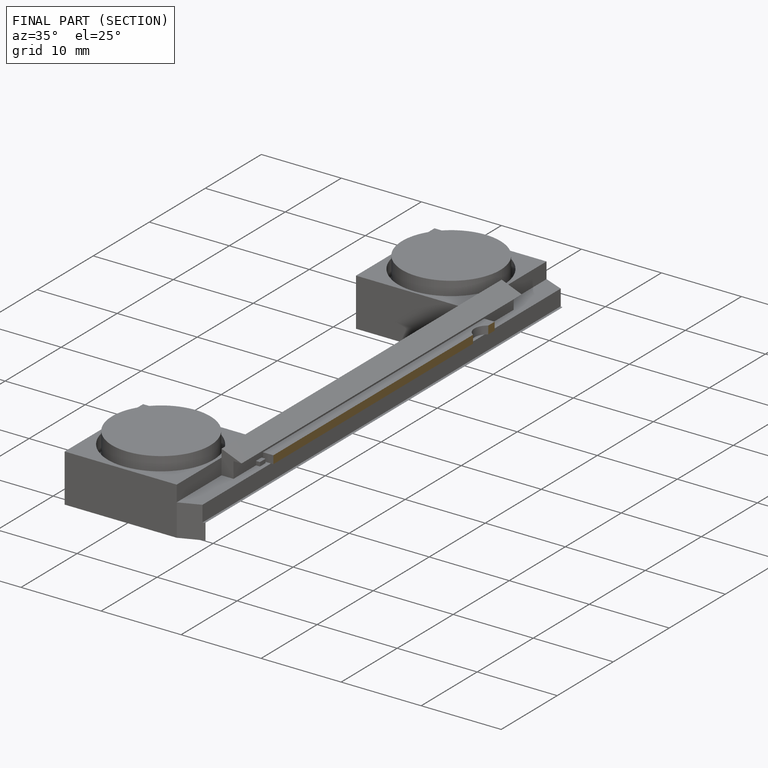
[diagram: finished part — half-section view (interior)]
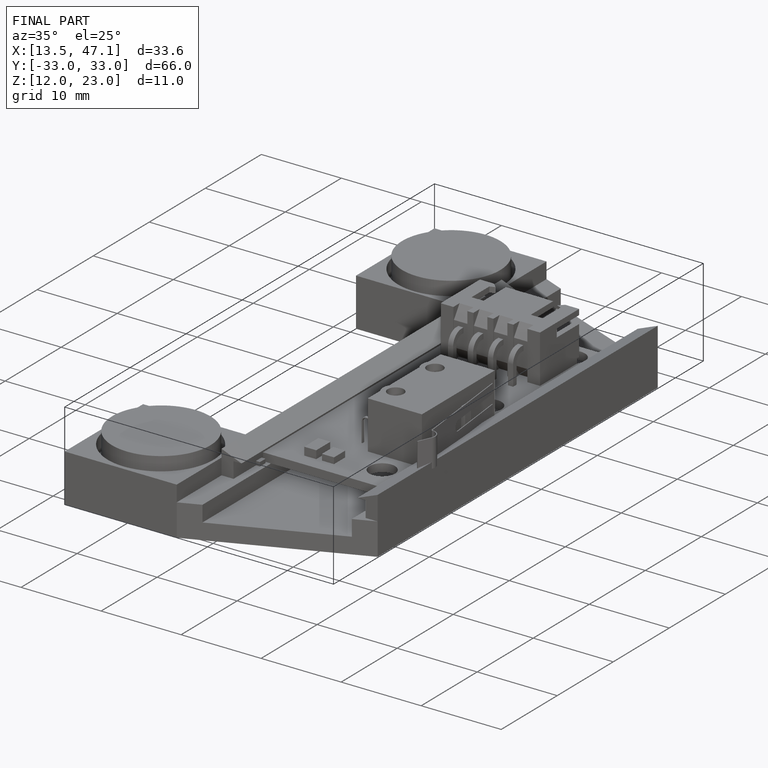
[diagram: finished part — iso view with bounding-box wireframe]
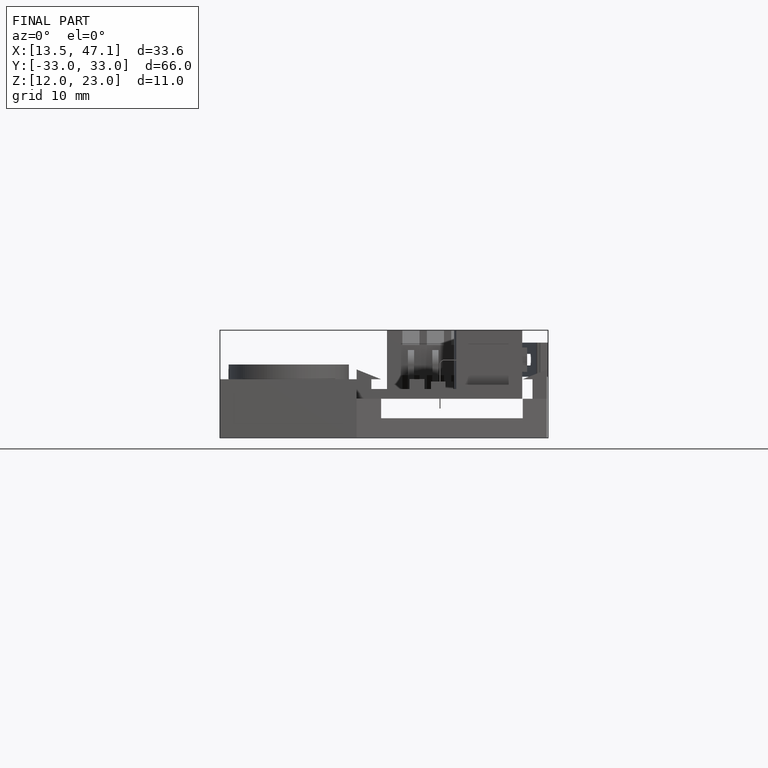
[diagram: finished part — front view with bounding-box wireframe]
